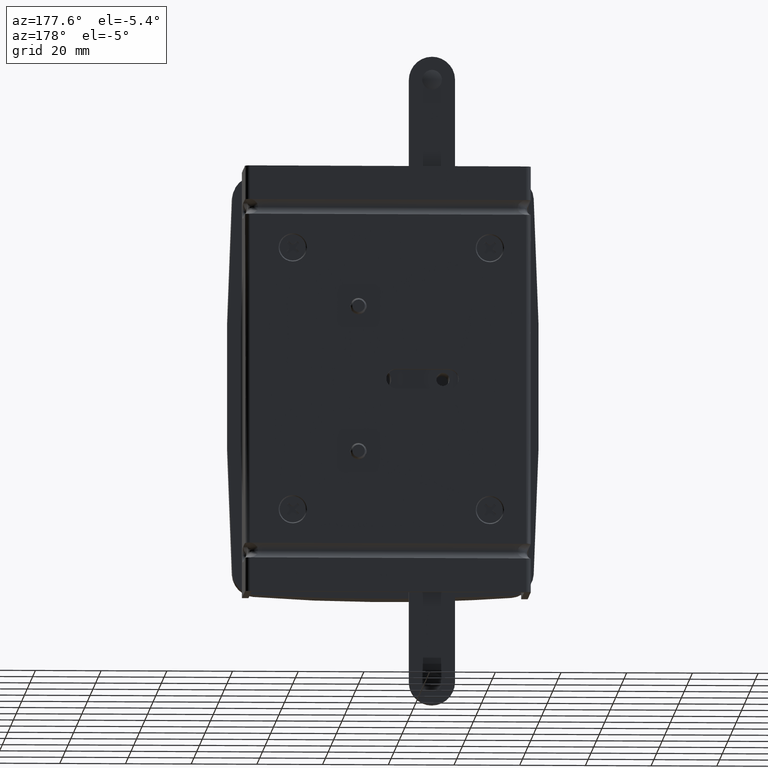
[diagram: clean part render]
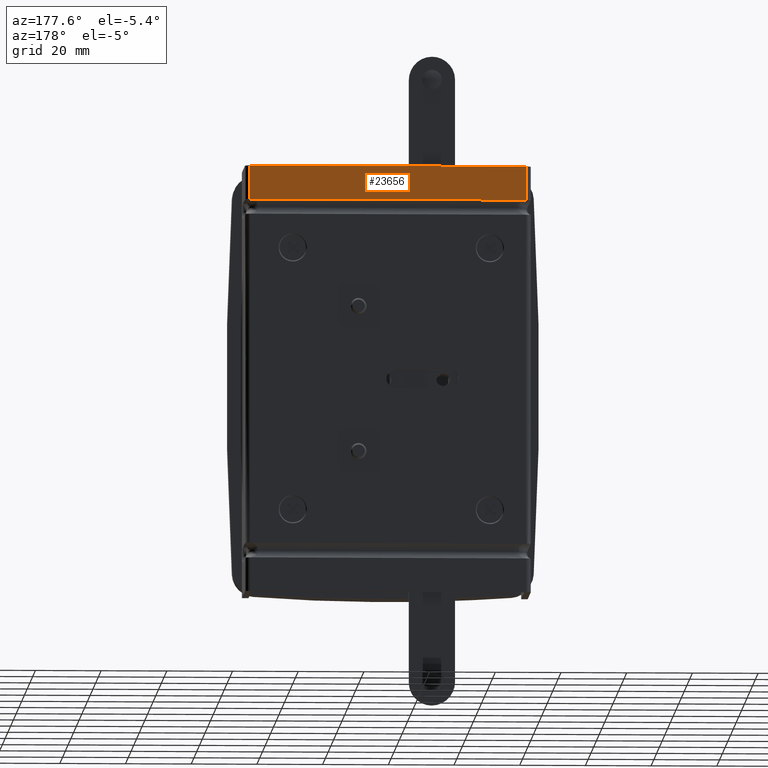
[diagram: same view with one face highlighted and labeled with its STEP entity id]
A machine part, auxiliary view. The second image highlights one B-rep face of the part: STEP entity #23656.
In plain terms, the highlighted face is a freeform B-spline surface patch.
Its self-contained STEP definition (entity closure, byte-faithful):
#15477=CARTESIAN_POINT('',(5.000007999998430,24.0,54.757822196871999));
#15478=VERTEX_POINT('',#15477);
#15515=CARTESIAN_POINT('',(5.000008000000091,24.0,65.0));
#15516=VERTEX_POINT('',#15515);
#15527=CARTESIAN_POINT('',(5.000007999998430,24.0,54.757822196871999));
#15528=CARTESIAN_POINT('',(5.000008000000091,24.0,65.0));
#15529=QUASI_UNIFORM_CURVE('',1,(#15527,#15528),.UNSPECIFIED.,.F.,.U.);
#15530=EDGE_CURVE('',#15478,#15516,#15529,.T.);
#15549=CARTESIAN_POINT('',(89.000008000000108,24.0,54.757822215242903));
#15550=VERTEX_POINT('',#15549);
#15582=CARTESIAN_POINT('',(89.000007999999895,24.0,65.0));
#15583=VERTEX_POINT('',#15582);
#15584=CARTESIAN_POINT('',(89.000007999999895,24.0,65.0));
#15585=CARTESIAN_POINT('',(89.000008000000108,24.0,54.757822215242903));
#15586=QUASI_UNIFORM_CURVE('',1,(#15584,#15585),.UNSPECIFIED.,.F.,.U.);
#15587=EDGE_CURVE('',#15583,#15550,#15586,.T.);
#21384=CARTESIAN_POINT('',(88.478881308887509,24.0,54.736067977499701));
#21385=VERTEX_POINT('',#21384);
#21386=CARTESIAN_POINT('',(89.000008000000108,24.0,54.757822215242903));
#21387=CARTESIAN_POINT('',(88.478881308887509,24.0,54.736067977499701));
#21388=QUASI_UNIFORM_CURVE('',1,(#21386,#21387),.UNSPECIFIED.,.F.,.U.);
#21389=EDGE_CURVE('',#15550,#21385,#21388,.T.);
#23060=CARTESIAN_POINT('',(5.521132067286221,24.0,54.736067977499701));
#23061=VERTEX_POINT('',#23060);
#23062=CARTESIAN_POINT('',(5.521132067286221,24.0,54.736067977499701));
#23063=CARTESIAN_POINT('',(5.000007999998430,24.0,54.757822196871999));
#23064=QUASI_UNIFORM_CURVE('',1,(#23062,#23063),.UNSPECIFIED.,.F.,.U.);
#23065=EDGE_CURVE('',#23061,#15478,#23064,.T.);
#23468=CARTESIAN_POINT('',(5.000008000000091,24.0,65.0));
#23469=CARTESIAN_POINT('',(89.000007999999895,24.0,65.0));
#23470=QUASI_UNIFORM_CURVE('',1,(#23468,#23469),.UNSPECIFIED.,.F.,.U.);
#23471=EDGE_CURVE('',#15516,#15583,#23470,.T.);
#23639=CARTESIAN_POINT('',(0.804208162806650,24.0,65.512683347960419));
#23640=CARTESIAN_POINT('',(0.804208162806650,24.0,54.223385088372787));
#23641=CARTESIAN_POINT('',(93.195810090247463,24.0,65.512683347960419));
#23642=CARTESIAN_POINT('',(93.195810090247463,24.0,54.223385088372787));
#23643=B_SPLINE_SURFACE_WITH_KNOTS('',1,1,((#23639,#23641),(#23640,#23642)),.UNSPECIFIED.,.F.,.F.,.U.,(2,2),(2,2),(0.0,11.289298259587630),(0.0,92.391601927440817),.UNSPECIFIED.);
#23644=ORIENTED_EDGE('',*,*,#23471,.T.);
#23645=ORIENTED_EDGE('',*,*,#15587,.T.);
#23646=ORIENTED_EDGE('',*,*,#21389,.T.);
#23647=CARTESIAN_POINT('',(88.478881308887509,24.0,54.736067977499701));
#23648=CARTESIAN_POINT('',(5.521132067286221,24.0,54.736067977499701));
#23649=QUASI_UNIFORM_CURVE('',1,(#23647,#23648),.UNSPECIFIED.,.F.,.U.);
#23650=EDGE_CURVE('',#21385,#23061,#23649,.T.);
#23651=ORIENTED_EDGE('',*,*,#23650,.T.);
#23652=ORIENTED_EDGE('',*,*,#23065,.T.);
#23653=ORIENTED_EDGE('',*,*,#15530,.T.);
#23654=EDGE_LOOP('',(#23644,#23645,#23646,#23651,#23652,#23653));
#23655=FACE_OUTER_BOUND('',#23654,.T.);
#23656=ADVANCED_FACE('',(#23655),#23643,.F.);